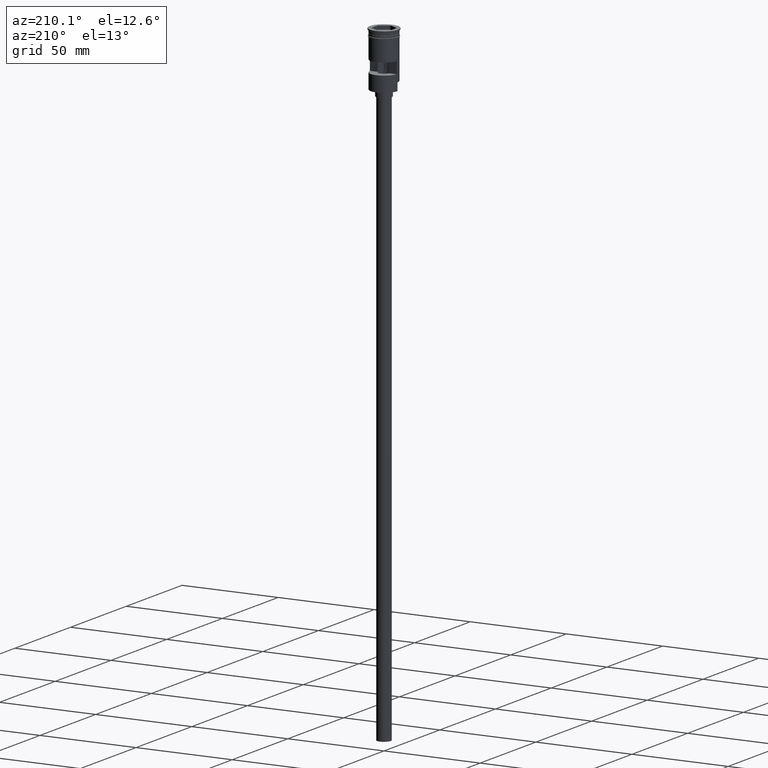
[diagram: clean part render]
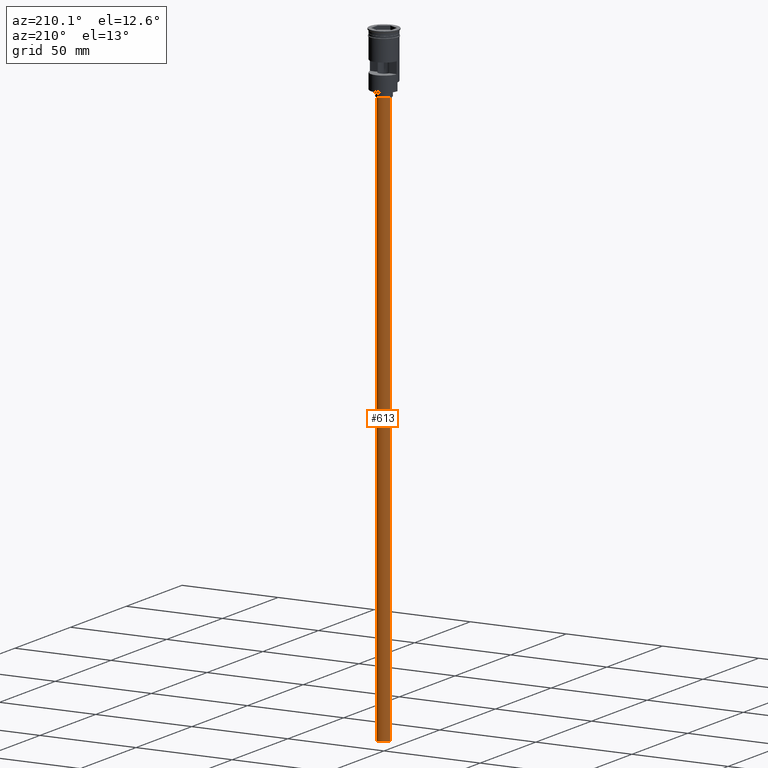
[diagram: same view with one face highlighted and labeled with its STEP entity id]
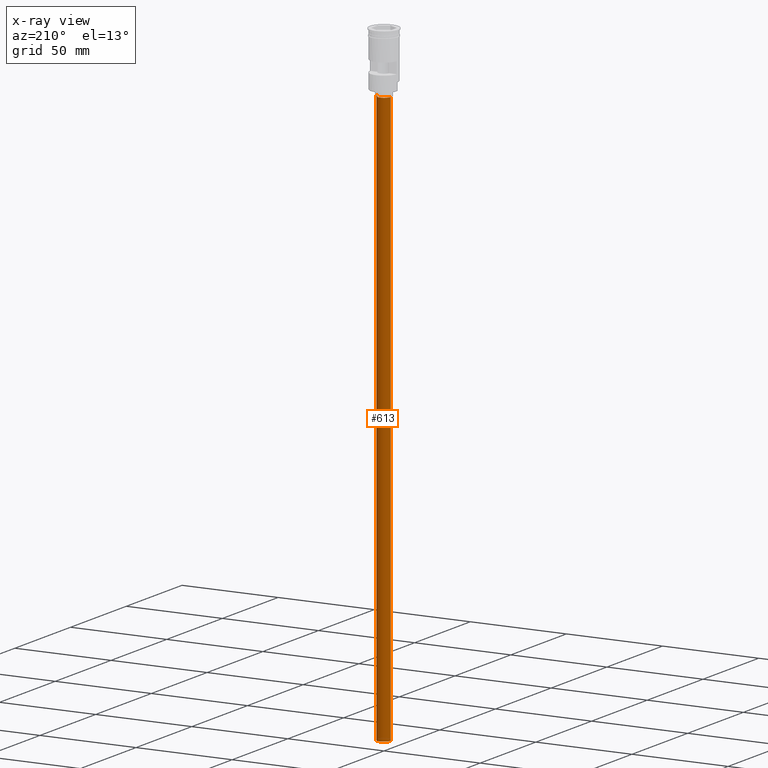
[diagram: x-ray of the same camera — body ghosted, the highlighted face saturated]
A machine part, auxiliary view. The second image highlights one B-rep face of the part: STEP entity #613.
The next image is the same camera in x-ray: the body ghosted, the highlighted face saturated — about 0% of this face is hidden behind the body in this view.
In plain terms, the highlighted cylindrical surface (edge-blend (fillet) strip) has radius 3.5 mm, axis along (-0, -0, 1).
Its self-contained STEP definition (entity closure, byte-faithful):
#30 = EDGE_LOOP ( 'NONE', ( #540, #1076, #902, #422 ) ) ;
#39 = VERTEX_POINT ( 'NONE', #328 ) ;
#186 = LINE ( 'NONE', #1190, #876 ) ;
#241 = CYLINDRICAL_SURFACE ( 'NONE', #1266, 3.500000000000000444 ) ;
#250 = DIRECTION ( 'NONE',  ( 0.000000000000000000, 0.000000000000000000, -1.000000000000000000 ) ) ;
#259 = DIRECTION ( 'NONE',  ( 1.000000000000000000, 0.000000000000000000, 0.000000000000000000 ) ) ;
#327 = AXIS2_PLACEMENT_3D ( 'NONE', #377, #250, #833 ) ;
#328 = CARTESIAN_POINT ( 'NONE',  ( -3.500000000000000444, 4.286263797015737088E-16, -31.50000000000000000 ) ) ;
#360 = CARTESIAN_POINT ( 'NONE',  ( 0.000000000000000000, 0.000000000000000000, -328.5000000000000000 ) ) ;
#377 = CARTESIAN_POINT ( 'NONE',  ( 0.000000000000000000, 0.000000000000000000, -328.5000000000000000 ) ) ;
#422 = ORIENTED_EDGE ( 'NONE', *, *, #537, .F. ) ;
#423 = CARTESIAN_POINT ( 'NONE',  ( -3.500000000000000444, 4.286263797015737088E-16, -328.5000000000000000 ) ) ;
#431 = VERTEX_POINT ( 'NONE', #549 ) ;
#442 = DIRECTION ( 'NONE',  ( -1.000000000000000000, 0.000000000000000000, 0.000000000000000000 ) ) ;
#480 = VECTOR ( 'NONE', #1177, 1000.000000000000000 ) ;
#537 = EDGE_CURVE ( 'NONE', #431, #873, #186, .T. ) ;
#540 = ORIENTED_EDGE ( 'NONE', *, *, #671, .F. ) ;
#549 = CARTESIAN_POINT ( 'NONE',  ( 3.500000000000000444, 0.000000000000000000, -328.5000000000000000 ) ) ;
#564 = DIRECTION ( 'NONE',  ( 0.000000000000000000, 0.000000000000000000, -1.000000000000000000 ) ) ;
#613 = ADVANCED_FACE ( 'NONE', ( #841 ), #241, .T. ) ;
#648 = CIRCLE ( 'NONE', #327, 3.500000000000000444 ) ;
#671 = EDGE_CURVE ( 'NONE', #835, #431, #648, .T. ) ;
#833 = DIRECTION ( 'NONE',  ( -1.000000000000000000, 0.000000000000000000, 0.000000000000000000 ) ) ;
#835 = VERTEX_POINT ( 'NONE', #1051 ) ;
#841 = FACE_OUTER_BOUND ( 'NONE', #30, .T. ) ;
#873 = VERTEX_POINT ( 'NONE', #920 ) ;
#876 = VECTOR ( 'NONE', #929, 1000.000000000000000 ) ;
#902 = ORIENTED_EDGE ( 'NONE', *, *, #966, .T. ) ;
#920 = CARTESIAN_POINT ( 'NONE',  ( 3.500000000000000444, 0.000000000000000000, -31.50000000000000000 ) ) ;
#929 = DIRECTION ( 'NONE',  ( -0.000000000000000000, -0.000000000000000000, 1.000000000000000000 ) ) ;
#966 = EDGE_CURVE ( 'NONE', #39, #873, #1563, .T. ) ;
#1051 = CARTESIAN_POINT ( 'NONE',  ( -3.500000000000000444, 4.286263797015737088E-16, -328.5000000000000000 ) ) ;
#1076 = ORIENTED_EDGE ( 'NONE', *, *, #1272, .T. ) ;
#1104 = DIRECTION ( 'NONE',  ( -0.000000000000000000, -0.000000000000000000, 1.000000000000000000 ) ) ;
#1177 = DIRECTION ( 'NONE',  ( -0.000000000000000000, -0.000000000000000000, 1.000000000000000000 ) ) ;
#1190 = CARTESIAN_POINT ( 'NONE',  ( 3.500000000000000444, 0.000000000000000000, -328.5000000000000000 ) ) ;
#1266 = AXIS2_PLACEMENT_3D ( 'NONE', #360, #1104, #259 ) ;
#1272 = EDGE_CURVE ( 'NONE', #835, #39, #1280, .T. ) ;
#1280 = LINE ( 'NONE', #423, #480 ) ;
#1513 = AXIS2_PLACEMENT_3D ( 'NONE', #1549, #564, #442 ) ;
#1549 = CARTESIAN_POINT ( 'NONE',  ( 0.000000000000000000, 0.000000000000000000, -31.50000000000000000 ) ) ;
#1563 = CIRCLE ( 'NONE', #1513, 3.500000000000000444 ) ;